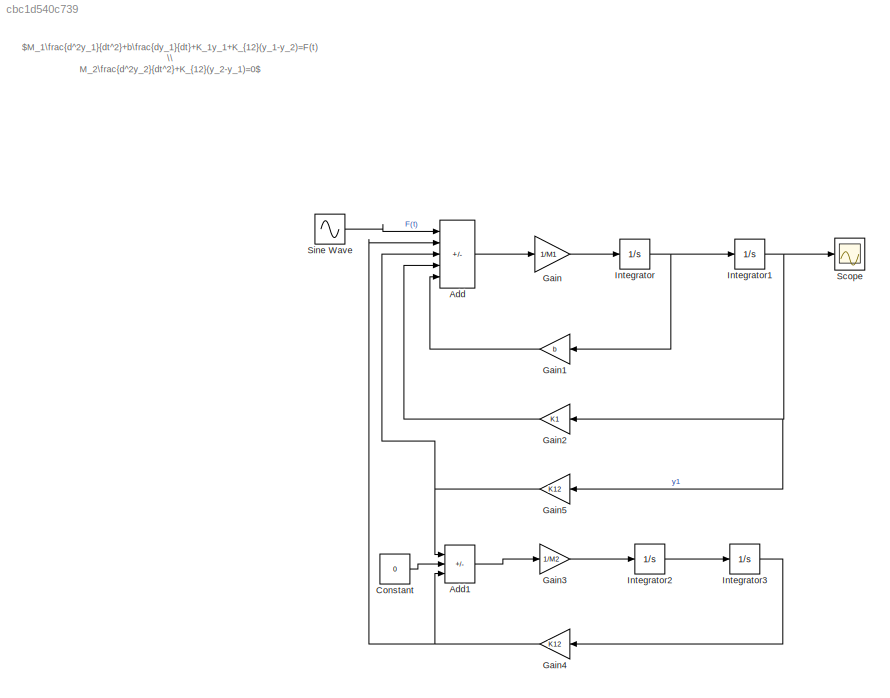
MODEL slx_cbc1d540c739
KIND model
CONFIG AbsTol = auto
CONFIG EnableMultiTasking = off
CONFIG FixedStep = auto
CONFIG MaxStep = 0.001
CONFIG MinStep = auto
CONFIG RelTol = 1e-3
CONFIG SampleTimeConstraint = Unconstrained
CONFIG Solver = VariableStepAuto
CONFIG SolverName = VariableStepAuto
CONFIG StartTime = 0.0
CONFIG StopTime = Te
BLOCK [Sum] Add
  IconShape = rectangular
  Inputs = ++---
  Ports = [5, 1]
BLOCK [Sum] Add1
  IconShape = rectangular
  Inputs = ++-
  Ports = [3, 1]
BLOCK [Constant] Constant
  Value = 0
BLOCK [Gain] Gain
  Gain = 1/M1
BLOCK [Gain] Gain1
  Gain = b
  NameLocation = top
BLOCK [Gain] Gain2
  Gain = K1
  NameLocation = top
BLOCK [Gain] Gain3
  Gain = 1/M2
BLOCK [Gain] Gain4
  Gain = K12
  NameLocation = top
BLOCK [Gain] Gain5
  Gain = K12
  NameLocation = top
BLOCK [Integrator] Integrator
  Ports = [1, 1]
BLOCK [Integrator] Integrator1
  Ports = [1, 1]
BLOCK [Integrator] Integrator2
  Ports = [1, 1]
BLOCK [Integrator] Integrator3
  Ports = [1, 1]
BLOCK [Scope] Scope
  Floating = off
  NumInputPorts = 1
  Ports = [1]
  ScopeSpecificationString = Simulink.scopes.TimeScopeBlockCfg('CurrentConfiguration', extmgr.ConfigurationSet(extmgr.Configuration('Core','General UI',true),extmgr.Configuration('Core','Source UI',true),extmgr.Configuration('Sources','WiredSimulink',true),extmgr.Configuration('Visuals','Time Domain',true,'SerializedDisplays',{struct('MinYLimReal','-0.00107','MaxYLimReal','0.00232','YLabelReal','','MinYLimMag','0.00000','MaxY...<+1322ch>
BLOCK [Sin] Sine Wave
  Amplitude = 2
  Frequency = 10
  Ports = [0, 1]
  SampleTime = 0
ANNOTATION (root): $M_1\frac{d^2y_1}{dt^2}+b\frac{dy_1}{dt}+K_1y_1+K_{12}(y_1-y_2)=F(t) \\ M_2\frac{d^2y_2}{dt^2}+K_{12}(y_2-y_1)=0$
LINE Add1:1 -> Gain3:1
LINE Add:1 -> Gain:1
LINE Constant:1 -> Add1:2
LINE Gain1:1 -> Add:5
LINE Gain2:1 -> Add:4
LINE Gain3:1 -> Integrator2:1
NET Gain4:1 -> Add1:3, Add:2
NET Gain5:1 -> Add1:1, Add:3
LINE Gain:1 -> Integrator:1
NET Integrator1:1 -> Gain2:1, Gain5:1, Scope:1
LINE Integrator2:1 -> Integrator3:1
LINE Integrator3:1 -> Gain4:1
NET Integrator:1 -> Gain1:1, Integrator1:1
LINE Sine Wave:1 -> Add:1
note: NET lines group one-source signal fan-out (src -> all destinations, sorted); 1:1 wires keep LINE
